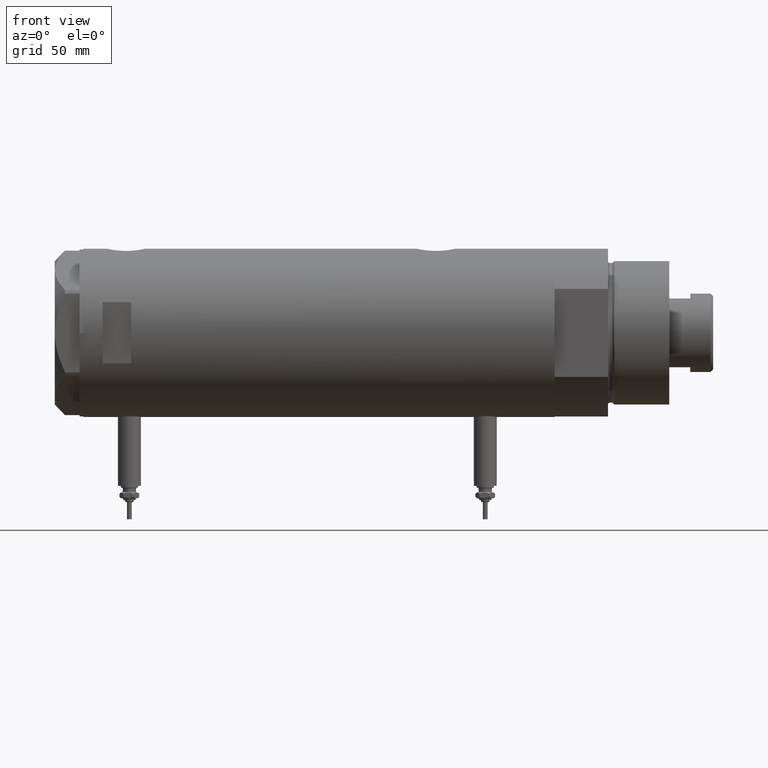
[diagram: clean part render]
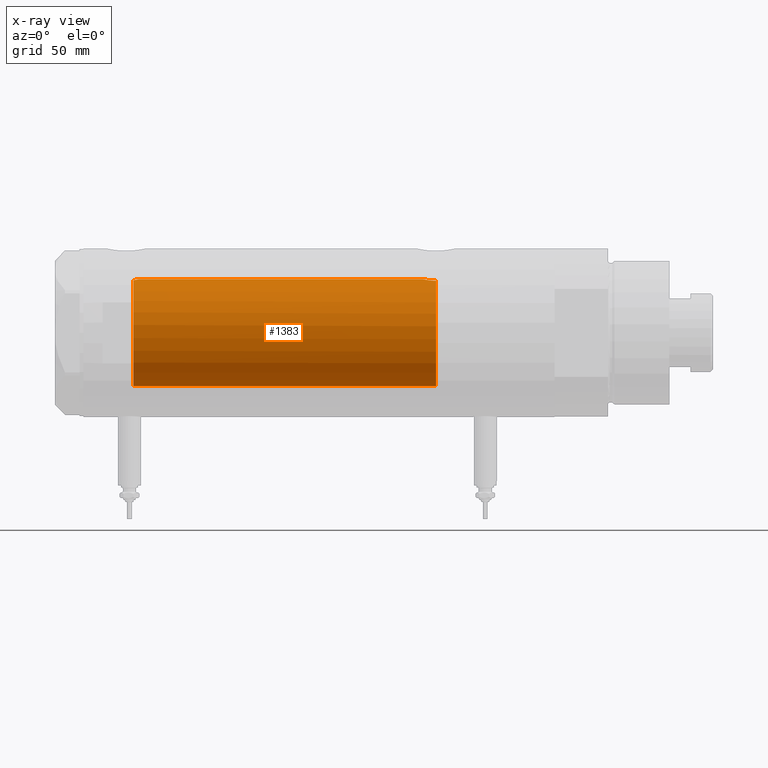
[diagram: x-ray — body ghosted, one internal face saturated and labeled with its STEP entity id]
A machine part, front view, then the same camera in x-ray: the body is ghosted and one INTERNAL B-rep face — a face not visible from any outside direction — is saturated and labeled: STEP entity #1383.
In plain terms, the highlighted cylindrical surface (partial cylindrical patch) has radius 28 mm, axis along (1, 0, -0).
Its self-contained STEP definition (entity closure, byte-faithful):
#14 = CARTESIAN_POINT ( 'NONE',  ( 27.68450581507584474, -4.196237264393388067, 95.82467802964416137 ) ) ;
#16 = CARTESIAN_POINT ( 'NONE',  ( 27.50152613123828260, -5.265397630035327126, -57.13030070339349464 ) ) ;
#202 = DIRECTION ( 'NONE',  ( -1.000000000000000000, 0.000000000000000000, 0.000000000000000000 ) ) ;
#203 = CARTESIAN_POINT ( 'NONE',  ( 27.94978721344213568, -1.729827962054681922, -54.73650615356604021 ) ) ;
#230 = DIRECTION ( 'NONE',  ( -0.000000000000000000, -0.000000000000000000, -1.000000000000000000 ) ) ;
#344 = CARTESIAN_POINT ( 'NONE',  ( 27.77950496257090762, -3.511644525604265432, -55.53121142391831455 ) ) ;
#366 = ORIENTED_EDGE ( 'NONE', *, *, #5272, .T. ) ;
#409 = DIRECTION ( 'NONE',  ( 0.000000000000000000, 0.000000000000000000, -1.000000000000000000 ) ) ;
#439 = CARTESIAN_POINT ( 'NONE',  ( 27.71590503262370930, -3.984646725731645578, 95.65688566206239329 ) ) ;
#498 = CARTESIAN_POINT ( 'NONE',  ( 27.34439869716139171, -6.024183900845905271, -58.44423424753806273 ) ) ;
#528 = CARTESIAN_POINT ( 'NONE',  ( 27.92172852149584727, -2.107204279616225140, 94.66075932795374115 ) ) ;
#655 = EDGE_CURVE ( 'NONE', #1738, #4984, #3906, .T. ) ;
#658 = CARTESIAN_POINT ( 'NONE',  ( 27.84562549742226523, -2.942523713096117710, -55.21055141078907269 ) ) ;
#743 = VERTEX_POINT ( 'NONE', #4682 ) ;
#884 = CARTESIAN_POINT ( 'NONE',  ( 0.000000000000000000, 0.000000000000000000, -61.20000000000000284 ) ) ;
#1012 = CARTESIAN_POINT ( 'NONE',  ( 27.21445766202535310, -6.585843933871719180, -60.76551644800678531 ) ) ;
#1104 = ORIENTED_EDGE ( 'NONE', *, *, #3688, .F. ) ;
#1107 = CYLINDRICAL_SURFACE ( 'NONE', #5277, 28.00000000000000000 ) ;
#1164 = CARTESIAN_POINT ( 'NONE',  ( 27.86589383012872645, -2.744524676092583437, -55.11575755532262377 ) ) ;
#1372 = CARTESIAN_POINT ( 'NONE',  ( 27.26146154097650154, -6.389008671741138734, -59.46702257288441729 ) ) ;
#1383 = ADVANCED_FACE ( 'NONE', ( #2966 ), #1107, .F. ) ;
#1453 = CARTESIAN_POINT ( 'NONE',  ( -28.00000000000000000, 0.000000000000000000, 123.2000000000000028 ) ) ;
#1455 = CARTESIAN_POINT ( 'NONE',  ( 27.46622653369042411, -5.441176343402230664, 97.20000000000000284 ) ) ;
#1466 = CARTESIAN_POINT ( 'NONE',  ( 27.80347162683809259, -3.320043793664065657, 95.21279742576763283 ) ) ;
#1502 = CARTESIAN_POINT ( 'NONE',  ( 27.36461315879794043, -5.931995402771976345, -58.24427370164930551 ) ) ;
#1563 = CARTESIAN_POINT ( 'NONE',  ( 27.92072186409136236, -2.143620579020478090, -54.86381653969048955 ) ) ;
#1738 = VERTEX_POINT ( 'NONE', #4176 ) ;
#1784 = VECTOR ( 'NONE', #3700, 1000.000000000000000 ) ;
#1859 = CARTESIAN_POINT ( 'NONE',  ( 27.55308463769899774, -4.992385646466217075, -56.79156508565561978 ) ) ;
#1899 = VERTEX_POINT ( 'NONE', #5181 ) ;
#1957 = CARTESIAN_POINT ( 'NONE',  ( 27.28993558706078915, -6.267945658363877293, -59.05080727201159618 ) ) ;
#2054 = ORIENTED_EDGE ( 'NONE', *, *, #4711, .F. ) ;
#2080 = CARTESIAN_POINT ( 'NONE',  ( 28.00000000000000000, 8.058211040235281960E-16, -54.52000000000001023 ) ) ;
#2082 = CARTESIAN_POINT ( 'NONE',  ( 28.00000000000000000, 8.058211040235281960E-16, -54.52000000000001023 ) ) ;
#2193 = CARTESIAN_POINT ( 'NONE',  ( 27.80238224209237430, -3.326386449198543538, -55.41852099557871014 ) ) ;
#2241 = DIRECTION ( 'NONE',  ( -0.000000000000000000, -0.000000000000000000, -1.000000000000000000 ) ) ;
#2291 = CARTESIAN_POINT ( 'NONE',  ( 27.52591771332015114, -5.139864392033250517, 96.75689419952075809 ) ) ;
#2304 = CARTESIAN_POINT ( 'NONE',  ( 28.00000000000000000, 3.429011037612589276E-15, 123.2000000000000028 ) ) ;
#2317 = CARTESIAN_POINT ( 'NONE',  ( 27.21605408577812568, -6.579240077698937483, -61.20000000000000284 ) ) ;
#2365 = EDGE_CURVE ( 'NONE', #1738, #1899, #5210, .T. ) ;
#2371 = AXIS2_PLACEMENT_3D ( 'NONE', #884, #409, #2625 ) ;
#2382 = CARTESIAN_POINT ( 'NONE',  ( 27.85549665828546750, -2.850794839423819393, 94.96367683698767337 ) ) ;
#2446 = CARTESIAN_POINT ( 'NONE',  ( 27.22359243188622457, -6.548490838374227963, -60.32326656774585416 ) ) ;
#2447 = B_SPLINE_CURVE_WITH_KNOTS ( 'NONE', 3,
 ( #5190, #1012, #2446, #1372, #1957, #498, #1502, #5097, #2777, #16, #1859, #3716, #4220, #344, #2193, #658, #1164, #1563, #203, #4988, #2509, #4374, #2931, #2082 ),
 .UNSPECIFIED., .F., .F.,
 ( 4, 2, 2, 2, 2, 2, 2, 2, 2, 2, 2, 4 ),
 ( 0.01022506235776657162, 0.01152748911132702239, 0.01282991586488747143, 0.01348112924166769769, 0.01413234261844792047, 0.01543476937200837125, 0.01673719612556882202, 0.01738840950234904481, 0.01803962287912927107, 0.01934204963268972011, 0.01999326300946994983, 0.02064447638625017609 ),
 .UNSPECIFIED. ) ;
#2509 = CARTESIAN_POINT ( 'NONE',  ( 27.98730817101646551, -0.8707001454186197309, -54.57418472479973559 ) ) ;
#2525 = EDGE_LOOP ( 'NONE', ( #1104, #366, #2054, #3173, #3900, #2809 ) ) ;
#2625 = DIRECTION ( 'NONE',  ( -1.000000000000000000, 0.000000000000000000, 0.000000000000000000 ) ) ;
#2739 = CARTESIAN_POINT ( 'NONE',  ( 27.87937907436173646, -2.608343522657388114, 94.85310177797239817 ) ) ;
#2777 = CARTESIAN_POINT ( 'NONE',  ( 27.43032278742161623, -5.620674311437143800, -57.67201933177630480 ) ) ;
#2809 = ORIENTED_EDGE ( 'NONE', *, *, #655, .T. ) ;
#2931 = CARTESIAN_POINT ( 'NONE',  ( 27.99999999999999645, -0.2171842281426351329, -54.52000000000000313 ) ) ;
#2966 = FACE_OUTER_BOUND ( 'NONE', #2525, .T. ) ;
#3069 = DIRECTION ( 'NONE',  ( 0.000000000000000000, 0.000000000000000000, 1.000000000000000000 ) ) ;
#3158 = DIRECTION ( 'NONE',  ( 1.000000000000000000, 0.000000000000000000, 0.000000000000000000 ) ) ;
#3161 = VECTOR ( 'NONE', #2241, 1000.000000000000000 ) ;
#3173 = ORIENTED_EDGE ( 'NONE', *, *, #4459, .T. ) ;
#3292 = CARTESIAN_POINT ( 'NONE',  ( 27.98432695902670631, -1.071102777755447377, 94.38580344277589518 ) ) ;
#3347 = CIRCLE ( 'NONE', #2371, 28.00000000000000000 ) ;
#3591 = VERTEX_POINT ( 'NONE', #2317 ) ;
#3682 = CARTESIAN_POINT ( 'NONE',  ( 27.94009016578284132, -1.849003963078879931, 94.57947875320516573 ) ) ;
#3688 = EDGE_CURVE ( 'NONE', #743, #4984, #4110, .T. ) ;
#3700 = DIRECTION ( 'NONE',  ( -0.000000000000000000, -0.000000000000000000, -1.000000000000000000 ) ) ;
#3714 = CARTESIAN_POINT ( 'NONE',  ( 27.59002303441815229, -4.790793940098342141, 96.35816176521461784 ) ) ;
#3716 = CARTESIAN_POINT ( 'NONE',  ( 27.65700784474207552, -4.380217411398919403, -56.17047453774085852 ) ) ;
#3754 = CARTESIAN_POINT ( 'NONE',  ( 28.00000000000000000, 0.000000000000000000, 94.32000000000000739 ) ) ;
#3801 = AXIS2_PLACEMENT_3D ( 'NONE', #4930, #3069, #3158 ) ;
#3858 = VERTEX_POINT ( 'NONE', #2080 ) ;
#3900 = ORIENTED_EDGE ( 'NONE', *, *, #2365, .F. ) ;
#3906 = CIRCLE ( 'NONE', #3801, 28.00000000000000000 ) ;
#4110 = B_SPLINE_CURVE_WITH_KNOTS ( 'NONE', 3,
 ( #3754, #4672, #3292, #3682, #528, #2739, #2382, #1466, #4611, #439, #14, #3714, #2291, #6002 ),
 .UNSPECIFIED., .F., .F.,
 ( 4, 2, 2, 2, 2, 2, 4 ),
 ( 0.000000000000000000, 0.001600622945448065652, 0.002400934418172098045, 0.003201245890896130437, 0.004001557363620162830, 0.004801868836344194355, 0.006402491781792285161 ),
 .UNSPECIFIED. ) ;
#4176 = CARTESIAN_POINT ( 'NONE',  ( -28.00000000000000000, 0.000000000000000000, 97.20000000000000284 ) ) ;
#4220 = CARTESIAN_POINT ( 'NONE',  ( 27.70817449315709524, -4.048115514111798596, -55.89463981057747333 ) ) ;
#4374 = CARTESIAN_POINT ( 'NONE',  ( 27.99747352180818538, -0.4347571716796903019, -54.53072531013187074 ) ) ;
#4459 = EDGE_CURVE ( 'NONE', #3591, #1899, #3347, .T. ) ;
#4611 = CARTESIAN_POINT ( 'NONE',  ( 27.77532582369374481, -3.546840381797768949, 95.35134423525664715 ) ) ;
#4672 = CARTESIAN_POINT ( 'NONE',  ( 28.00000000000001066, -0.5413643627070152675, 94.32000000000002160 ) ) ;
#4682 = CARTESIAN_POINT ( 'NONE',  ( 28.00000000000000000, 0.000000000000000000, 94.32000000000000739 ) ) ;
#4711 = EDGE_CURVE ( 'NONE', #3591, #3858, #2447, .T. ) ;
#4766 = CARTESIAN_POINT ( 'NONE',  ( 0.000000000000000000, 0.000000000000000000, 123.2000000000000028 ) ) ;
#4930 = CARTESIAN_POINT ( 'NONE',  ( 0.000000000000000000, 0.000000000000000000, 97.20000000000000284 ) ) ;
#4984 = VERTEX_POINT ( 'NONE', #1455 ) ;
#4988 = CARTESIAN_POINT ( 'NONE',  ( 27.97963188585489291, -1.089002775846584337, -54.60708365738663161 ) ) ;
#5019 = LINE ( 'NONE', #2304, #3161 ) ;
#5097 = CARTESIAN_POINT ( 'NONE',  ( 27.40754191563011588, -5.730381220489944027, -57.85863096555547713 ) ) ;
#5181 = CARTESIAN_POINT ( 'NONE',  ( -28.00000000000000000, 0.000000000000000000, -61.20000000000000284 ) ) ;
#5190 = CARTESIAN_POINT ( 'NONE',  ( 27.21605408577812568, -6.579240077698937483, -61.20000000000000284 ) ) ;
#5210 = LINE ( 'NONE', #1453, #1784 ) ;
#5272 = EDGE_CURVE ( 'NONE', #743, #3858, #5019, .T. ) ;
#5277 = AXIS2_PLACEMENT_3D ( 'NONE', #4766, #230, #202 ) ;
#6002 = CARTESIAN_POINT ( 'NONE',  ( 27.46622653369042411, -5.441176343402230664, 97.20000000000000284 ) ) ;